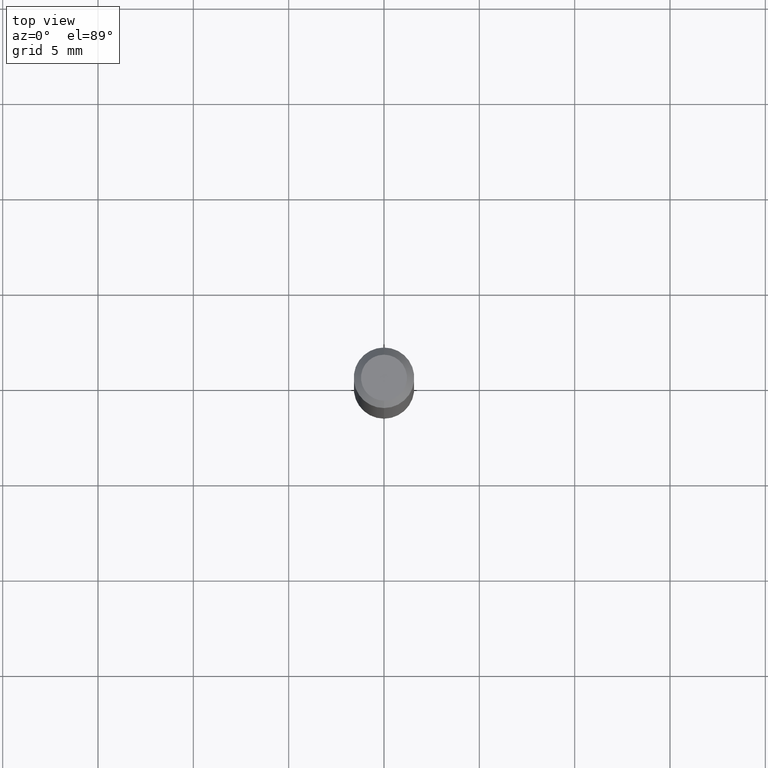
[diagram: clean part render]
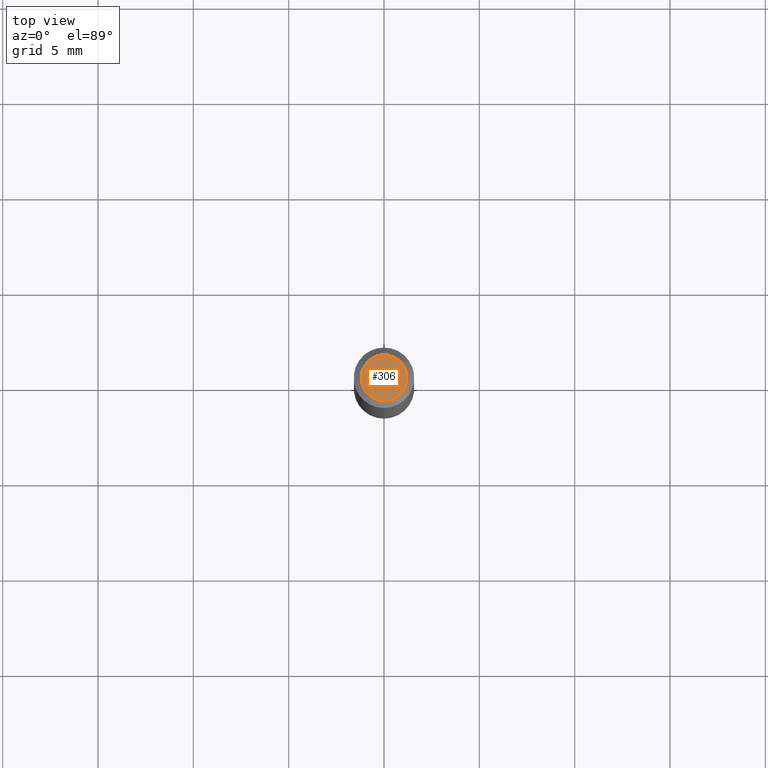
[diagram: same view with one face highlighted and labeled with its STEP entity id]
A machine part, top view. The second image highlights one B-rep face of the part: STEP entity #306.
In plain terms, the highlighted planar face has unit normal (0, -0, -1).
Its self-contained STEP definition (entity closure, byte-faithful):
#9 = DIRECTION ( 'NONE',  ( -2.445453483814696650E-29, 3.491503281349710871E-15, 1.000000000000000000 ) ) ;
#12 = CARTESIAN_POINT ( 'NONE',  ( 2.166495059304660082E-46, -3.093219584283591612E-32, -8.859277322769250209E-18 ) ) ;
#20 = EDGE_CURVE ( 'NONE', #103, #124, #176, .T. ) ;
#43 = DIRECTION ( 'NONE',  ( -6.982962677686266711E-15, -1.000000000000000000, 3.491503281349711266E-15 ) ) ;
#49 = ORIENTED_EDGE ( 'NONE', *, *, #20, .T. ) ;
#77 = PLANE ( 'NONE',  #159 ) ;
#103 = VERTEX_POINT ( 'NONE', #123 ) ;
#123 = CARTESIAN_POINT ( 'NONE',  ( 3.840629472727447874E-16, 0.04749999999999999362, -1.747056831868805136E-16 ) ) ;
#124 = VERTEX_POINT ( 'NONE', #422 ) ;
#133 = FACE_OUTER_BOUND ( 'NONE', #453, .T. ) ;
#159 = AXIS2_PLACEMENT_3D ( 'NONE', #225, #512, #163 ) ;
#163 = DIRECTION ( 'NONE',  ( 6.982962677686265922E-15, 1.000000000000000000, -3.491503281349710477E-15 ) ) ;
#175 = EDGE_CURVE ( 'NONE', #124, #103, #379, .T. ) ;
#176 = CIRCLE ( 'NONE', #267, 0.04749999999999999362 ) ;
#222 = DIRECTION ( 'NONE',  ( -2.445453483814696650E-29, 3.491503281349710871E-15, 1.000000000000000000 ) ) ;
#223 = DIRECTION ( 'NONE',  ( -6.982962677686266711E-15, -1.000000000000000000, 3.491503281349711266E-15 ) ) ;
#225 = CARTESIAN_POINT ( 'NONE',  ( 3.316907271900976096E-16, 0.04749999999999999362, -1.702760445254958762E-16 ) ) ;
#230 = ORIENTED_EDGE ( 'NONE', *, *, #175, .T. ) ;
#267 = AXIS2_PLACEMENT_3D ( 'NONE', #468, #222, #223 ) ;
#295 = AXIS2_PLACEMENT_3D ( 'NONE', #12, #9, #43 ) ;
#306 = ADVANCED_FACE ( 'NONE', ( #133 ), #77, .F. ) ;
#379 = CIRCLE ( 'NONE', #295, 0.04749999999999999362 ) ;
#422 = CARTESIAN_POINT ( 'NONE',  ( -3.773273898774340269E-16, -0.04749999999999999362, 1.569871285413420132E-16 ) ) ;
#453 = EDGE_LOOP ( 'NONE', ( #49, #230 ) ) ;
#468 = CARTESIAN_POINT ( 'NONE',  ( 2.166495059304660082E-46, -3.093219584283591612E-32, -8.859277322769250209E-18 ) ) ;
#512 = DIRECTION ( 'NONE',  ( 2.445453483814696650E-29, -3.491503281349710477E-15, -1.000000000000000000 ) ) ;